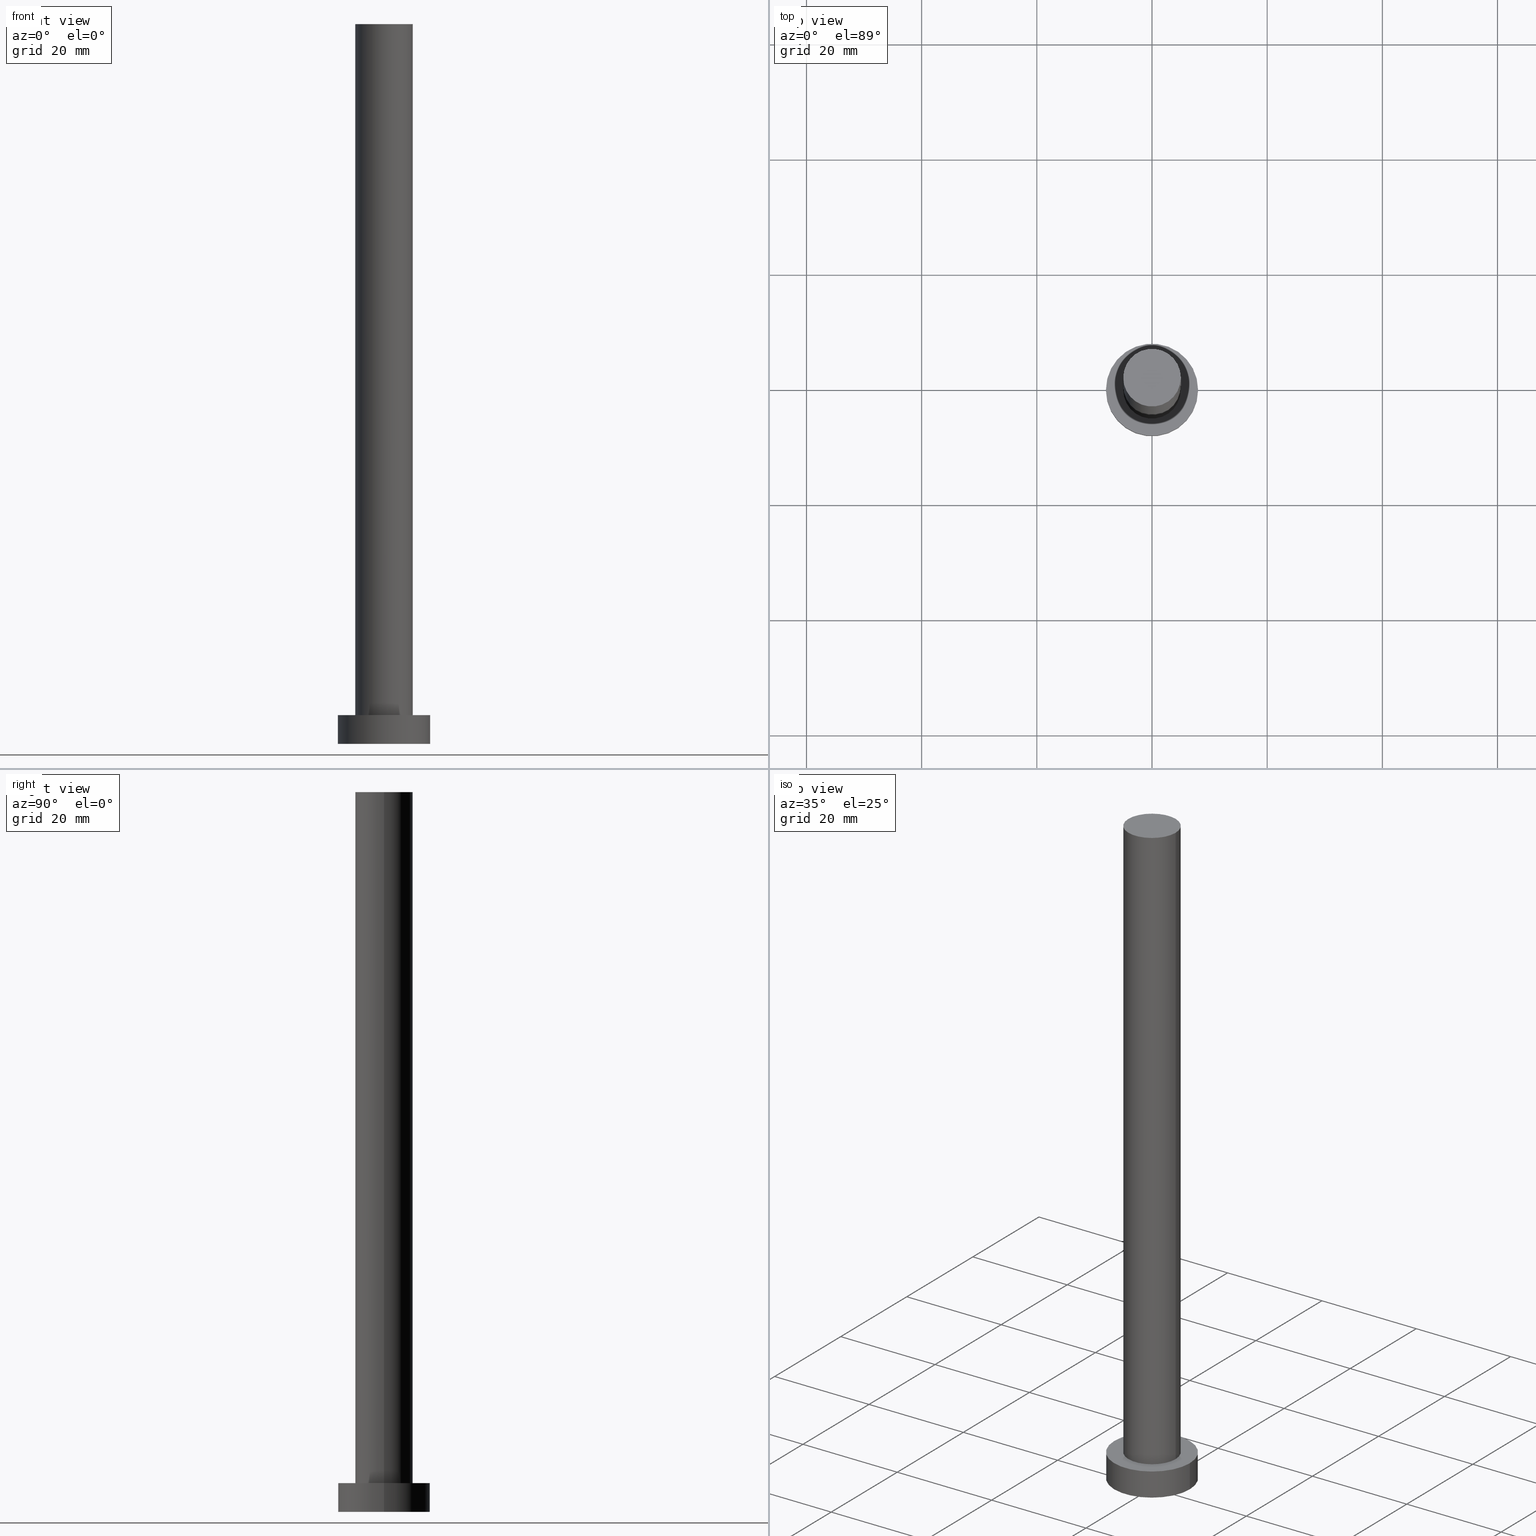
[diagram: canonical four-view strip — front | top / right | iso, engineering-drawing reading convention]
A machine part, canonical four-view strip (front | top / right | iso — engineering-drawing reading convention). The complete STEP part file that produces these views, byte-faithful:
ISO-10303-21;
HEADER;
FILE_DESCRIPTION (( 'STEP AP203' ),
    '1' );
FILE_NAME ('c1f3.STEP',
    '2023-02-13T12:07:16',
    ( '' ),
    ( '' ),
    'SwSTEP 2.0',
    'SolidWorks 2019',
    '' );
FILE_SCHEMA (( 'CONFIG_CONTROL_DESIGN' ));
ENDSEC;

DATA;
#1 = CALENDAR_DATE ( 2023, 13, 2 ) ;
#2 = COORDINATED_UNIVERSAL_TIME_OFFSET ( 1, 0, .AHEAD. ) ;
#3 = APPROVAL ( #72, 'NEUR�EN�' ) ;
#4 = DATE_AND_TIME ( #76, #14 ) ;
#5 = ORIENTED_EDGE ( 'NONE', *, *, #101, .F. ) ;
#6 = DATE_TIME_ROLE ( 'creation_date' ) ;
#7 = ORIENTED_EDGE ( 'NONE', *, *, #109, .F. ) ;
#8 = CC_DESIGN_PERSON_AND_ORGANIZATION_ASSIGNMENT ( #223, #116, ( #156 ) ) ;
#9 = VERTEX_POINT ( 'NONE', #42 ) ;
#10 = ADVANCED_FACE ( 'NONE', ( #251 ), #64, .T. ) ;
#11 = DIRECTION ( 'NONE',  ( -0.000000000000000000, -0.000000000000000000, -1.000000000000000000 ) ) ;
#12 = CARTESIAN_POINT ( 'NONE',  ( -5.000000000000000888, 0.000000000000000000, 125.0000000000000000 ) ) ;
#13 = CLOSED_SHELL ( 'NONE', ( #255, #195, #126, #225, #150, #10, #17 ) ) ;
#14 = LOCAL_TIME ( 13, 7, 16.00000000000000000, #222 ) ;
#15 = DIRECTION ( 'NONE',  ( 1.000000000000000000, 0.000000000000000000, 0.000000000000000000 ) ) ;
#16 = EDGE_LOOP ( 'NONE', ( #5, #30 ) ) ;
#17 = ADVANCED_FACE ( 'NONE', ( #203 ), #102, .T. ) ;
#18 = LINE ( 'NONE', #137, #127 ) ;
#19 = AXIS2_PLACEMENT_3D ( 'NONE', #176, #108, #70 ) ;
#20 = EDGE_CURVE ( 'NONE', #24, #77, #35, .T. ) ;
#21 =( NAMED_UNIT ( * ) PLANE_ANGLE_UNIT ( ) SI_UNIT ( $, .RADIAN. ) );
#22 = DIRECTION ( 'NONE',  ( 1.000000000000000000, 0.000000000000000000, -0.000000000000000000 ) ) ;
#23 = SECURITY_CLASSIFICATION ( '', '', #158 ) ;
#24 = VERTEX_POINT ( 'NONE', #227 ) ;
#25 = ORIENTED_EDGE ( 'NONE', *, *, #97, .T. ) ;
#26 = CARTESIAN_POINT ( 'NONE',  ( 0.000000000000000000, 0.000000000000000000, 5.000000000000000000 ) ) ;
#27 = AXIS2_PLACEMENT_3D ( 'NONE', #33, #207, #131 ) ;
#28 = DIRECTION ( 'NONE',  ( 0.000000000000000000, 0.000000000000000000, 1.000000000000000000 ) ) ;
#29 = DIRECTION ( 'NONE',  ( 1.000000000000000000, 0.000000000000000000, 0.000000000000000000 ) ) ;
#30 = ORIENTED_EDGE ( 'NONE', *, *, #112, .F. ) ;
#31 = CARTESIAN_POINT ( 'NONE',  ( 0.000000000000000000, 0.000000000000000000, 125.0000000000000000 ) ) ;
#32 = CARTESIAN_POINT ( 'NONE',  ( -8.000000000000000000, 0.000000000000000000, 0.000000000000000000 ) ) ;
#33 = CARTESIAN_POINT ( 'NONE',  ( 0.000000000000000000, 0.000000000000000000, 5.000000000000000000 ) ) ;
#34 = CC_DESIGN_PERSON_AND_ORGANIZATION_ASSIGNMENT ( #115, #178, ( #47 ) ) ;
#35 = CIRCLE ( 'NONE', #249, 5.000000000000000888 ) ;
#36 = LINE ( 'NONE', #173, #95 ) ;
#37 = DIRECTION ( 'NONE',  ( 1.000000000000000000, 0.000000000000000000, -0.000000000000000000 ) ) ;
#38 = CC_DESIGN_APPROVAL ( #3, ( #156 ) ) ;
#39 = EDGE_LOOP ( 'NONE', ( #87, #166, #82, #57 ) ) ;
#40 = APPROVAL_PERSON_ORGANIZATION ( #100, #3, #242 ) ;
#41 = VERTEX_POINT ( 'NONE', #61 ) ;
#42 = CARTESIAN_POINT ( 'NONE',  ( -5.000000000000000888, 0.000000000000000000, 125.0000000000000000 ) ) ;
#43 = CC_DESIGN_PERSON_AND_ORGANIZATION_ASSIGNMENT ( #193, #151, ( #213 ) ) ;
#44 = ORIENTED_EDGE ( 'NONE', *, *, #229, .T. ) ;
#45 = DIRECTION ( 'NONE',  ( -1.000000000000000000, 0.000000000000000000, 0.000000000000000000 ) ) ;
#46 = DIRECTION ( 'NONE',  ( -0.000000000000000000, -0.000000000000000000, -1.000000000000000000 ) ) ;
#47 = PRODUCT_DEFINITION ( 'NEZN�M�', '', #156, #218 ) ;
#48 = LINE ( 'NONE', #103, #68 ) ;
#49 = LOCAL_TIME ( 13, 7, 16.00000000000000000, #120 ) ;
#50 = DIRECTION ( 'NONE',  ( -0.000000000000000000, -0.000000000000000000, -1.000000000000000000 ) ) ;
#51 = CARTESIAN_POINT ( 'NONE',  ( 0.000000000000000000, 0.000000000000000000, 125.0000000000000000 ) ) ;
#52 = APPROVAL_STATUS ( 'not_yet_approved' ) ;
#53 = AXIS2_PLACEMENT_3D ( 'NONE', #31, #28, #107 ) ;
#54 = CARTESIAN_POINT ( 'NONE',  ( 8.000000000000000000, 9.797174393178825657E-16, 5.000000000000000000 ) ) ;
#55 = SHAPE_DEFINITION_REPRESENTATION ( #138, #135 ) ;
#56 = PERSON_AND_ORGANIZATION_ROLE ( 'classification_officer' ) ;
#57 = ORIENTED_EDGE ( 'NONE', *, *, #101, .T. ) ;
#58 = CALENDAR_DATE ( 2023, 13, 2 ) ;
#59 = DATE_AND_TIME ( #241, #191 ) ;
#60 = ORIENTED_EDGE ( 'NONE', *, *, #229, .F. ) ;
#61 = CARTESIAN_POINT ( 'NONE',  ( 8.000000000000000000, 9.797174393178825657E-16, 0.000000000000000000 ) ) ;
#62 = AXIS2_PLACEMENT_3D ( 'NONE', #105, #46, #45 ) ;
#63 = DIRECTION ( 'NONE',  ( -0.000000000000000000, -0.000000000000000000, -1.000000000000000000 ) ) ;
#64 = CYLINDRICAL_SURFACE ( 'NONE', #62, 5.000000000000000888 ) ;
#65 = PERSON ( 'NEUR�EN�', 'NEUR�EN�', 'NEUR�EN�', ('NEUR�EN�'), ('NEUR�EN�'), ('NEUR�EN�') ) ;
#66 = CARTESIAN_POINT ( 'NONE',  ( 0.000000000000000000, 0.000000000000000000, 0.000000000000000000 ) ) ;
#67 = PLANE ( 'NONE',  #106 ) ;
#68 = VECTOR ( 'NONE', #202, 1000.000000000000000 ) ;
#69 =( GEOMETRIC_REPRESENTATION_CONTEXT ( 3 ) GLOBAL_UNCERTAINTY_ASSIGNED_CONTEXT ( ( #80 ) ) GLOBAL_UNIT_ASSIGNED_CONTEXT ( ( #110, #21, #71 ) ) REPRESENTATION_CONTEXT ( 'NONE', 'WORKASPACE' ) );
#70 = DIRECTION ( 'NONE',  ( -1.000000000000000000, 0.000000000000000000, 0.000000000000000000 ) ) ;
#71 =( NAMED_UNIT ( * ) SI_UNIT ( $, .STERADIAN. ) SOLID_ANGLE_UNIT ( ) );
#72 = APPROVAL_STATUS ( 'not_yet_approved' ) ;
#73 = APPROVAL_STATUS ( 'not_yet_approved' ) ;
#74 = EDGE_CURVE ( 'NONE', #9, #77, #125, .T. ) ;
#75 = ORIENTED_EDGE ( 'NONE', *, *, #97, .F. ) ;
#76 = CALENDAR_DATE ( 2023, 13, 2 ) ;
#77 = VERTEX_POINT ( 'NONE', #146 ) ;
#78 = PERSON_AND_ORGANIZATION ( #65, #167 ) ;
#79 = EDGE_LOOP ( 'NONE', ( #206, #123, #169, #182 ) ) ;
#80 = UNCERTAINTY_MEASURE_WITH_UNIT (LENGTH_MEASURE( 1.000000000000000082E-05 ), #110, 'distance_accuracy_value', 'NONE');
#81 = APPROVAL_PERSON_ORGANIZATION ( #238, #186, #179 ) ;
#82 = ORIENTED_EDGE ( 'NONE', *, *, #214, .T. ) ;
#83 = ORIENTED_EDGE ( 'NONE', *, *, #145, .T. ) ;
#84 = CIRCLE ( 'NONE', #154, 5.000000000000000888 ) ;
#85 = ORIENTED_EDGE ( 'NONE', *, *, #214, .F. ) ;
#86 = DIRECTION ( 'NONE',  ( 0.000000000000000000, 0.000000000000000000, 1.000000000000000000 ) ) ;
#87 = ORIENTED_EDGE ( 'NONE', *, *, #145, .F. ) ;
#88 = AXIS2_PLACEMENT_3D ( 'NONE', #128, #204, #29 ) ;
#89 = DIRECTION ( 'NONE',  ( -0.000000000000000000, -0.000000000000000000, -1.000000000000000000 ) ) ;
#90 = PLANE ( 'NONE',  #152 ) ;
#91 = MANIFOLD_SOLID_BREP ( 'P�idat vysunut�m3', #13 ) ;
#92 = EDGE_CURVE ( 'NONE', #160, #9, #134, .T. ) ;
#93 = DIRECTION ( 'NONE',  ( 0.000000000000000000, 0.000000000000000000, 1.000000000000000000 ) ) ;
#94 = CIRCLE ( 'NONE', #243, 8.000000000000000000 ) ;
#95 = VECTOR ( 'NONE', #89, 1000.000000000000000 ) ;
#96 = DATE_TIME_ROLE ( 'classification_date' ) ;
#97 = EDGE_CURVE ( 'NONE', #192, #224, #183, .T. ) ;
#98 = PERSON_AND_ORGANIZATION ( #65, #167 ) ;
#99 = EDGE_LOOP ( 'NONE', ( #240, #25 ) ) ;
#100 = PERSON_AND_ORGANIZATION ( #65, #167 ) ;
#101 = EDGE_CURVE ( 'NONE', #205, #41, #199, .T. ) ;
#102 = PLANE ( 'NONE',  #175 ) ;
#103 = CARTESIAN_POINT ( 'NONE',  ( 5.000000000000000888, 6.123233995736767268E-16, 125.0000000000000000 ) ) ;
#104 = CYLINDRICAL_SURFACE ( 'NONE', #163, 8.000000000000000000 ) ;
#105 = CARTESIAN_POINT ( 'NONE',  ( 0.000000000000000000, 0.000000000000000000, 125.0000000000000000 ) ) ;
#106 = AXIS2_PLACEMENT_3D ( 'NONE', #194, #111, #22 ) ;
#107 = DIRECTION ( 'NONE',  ( 1.000000000000000000, 0.000000000000000000, 0.000000000000000000 ) ) ;
#108 = DIRECTION ( 'NONE',  ( -0.000000000000000000, -0.000000000000000000, -1.000000000000000000 ) ) ;
#109 = EDGE_CURVE ( 'NONE', #77, #24, #84, .T. ) ;
#110 =( LENGTH_UNIT ( ) NAMED_UNIT ( * ) SI_UNIT ( .MILLI., .METRE. ) );
#111 = DIRECTION ( 'NONE',  ( 0.000000000000000000, 0.000000000000000000, 1.000000000000000000 ) ) ;
#112 = EDGE_CURVE ( 'NONE', #41, #205, #94, .T. ) ;
#113 = CYLINDRICAL_SURFACE ( 'NONE', #27, 8.000000000000000000 ) ;
#114 = MECHANICAL_CONTEXT ( 'NONE', #187, 'mechanical' ) ;
#115 = PERSON_AND_ORGANIZATION ( #65, #167 ) ;
#116 = PERSON_AND_ORGANIZATION_ROLE ( 'design_supplier' ) ;
#117 = EDGE_LOOP ( 'NONE', ( #7, #130 ) ) ;
#118 = ORIENTED_EDGE ( 'NONE', *, *, #92, .T. ) ;
#119 = AXIS2_PLACEMENT_3D ( 'NONE', #171, #86, #252 ) ;
#120 = COORDINATED_UNIVERSAL_TIME_OFFSET ( 1, 0, .AHEAD. ) ;
#121 = CC_DESIGN_APPROVAL ( #220, ( #47 ) ) ;
#122 = EDGE_CURVE ( 'NONE', #160, #24, #48, .T. ) ;
#123 = ORIENTED_EDGE ( 'NONE', *, *, #122, .T. ) ;
#124 = DIRECTION ( 'NONE',  ( 1.000000000000000000, 0.000000000000000000, 0.000000000000000000 ) ) ;
#125 = LINE ( 'NONE', #12, #162 ) ;
#126 = ADVANCED_FACE ( 'NONE', ( #165 ), #104, .T. ) ;
#127 = VECTOR ( 'NONE', #50, 1000.000000000000000 ) ;
#128 = CARTESIAN_POINT ( 'NONE',  ( 0.000000000000000000, 0.000000000000000000, 5.000000000000000000 ) ) ;
#129 = DIRECTION ( 'NONE',  ( 0.000000000000000000, 0.000000000000000000, 1.000000000000000000 ) ) ;
#130 = ORIENTED_EDGE ( 'NONE', *, *, #20, .F. ) ;
#131 = DIRECTION ( 'NONE',  ( -1.000000000000000000, 0.000000000000000000, 0.000000000000000000 ) ) ;
#132 = FACE_OUTER_BOUND ( 'NONE', #99, .T. ) ;
#133 = FACE_OUTER_BOUND ( 'NONE', #16, .T. ) ;
#134 = CIRCLE ( 'NONE', #53, 5.000000000000000888 ) ;
#135 = ADVANCED_BREP_SHAPE_REPRESENTATION ( 'c1f3', ( #91, #136 ), #69 ) ;
#136 = AXIS2_PLACEMENT_3D ( 'NONE', #235, #215, #254 ) ;
#137 = CARTESIAN_POINT ( 'NONE',  ( 8.000000000000000000, 9.797174393178825657E-16, 5.000000000000000000 ) ) ;
#138 = PRODUCT_DEFINITION_SHAPE ( 'NONE', 'NONE',  #47 ) ;
#139 = APPLICATION_PROTOCOL_DEFINITION ( 'international standard', 'config_control_design', 1994, #187 ) ;
#140 = COORDINATED_UNIVERSAL_TIME_OFFSET ( 1, 0, .AHEAD. ) ;
#141 = PERSON_AND_ORGANIZATION_ROLE ( 'creator' ) ;
#142 = EDGE_CURVE ( 'NONE', #224, #192, #211, .T. ) ;
#143 = EDGE_LOOP ( 'NONE', ( #44, #118 ) ) ;
#144 = EDGE_LOOP ( 'NONE', ( #75, #83, #221, #85 ) ) ;
#145 = EDGE_CURVE ( 'NONE', #192, #41, #18, .T. ) ;
#146 = CARTESIAN_POINT ( 'NONE',  ( -5.000000000000000888, 0.000000000000000000, 5.000000000000000000 ) ) ;
#147 = DIRECTION ( 'NONE',  ( 0.000000000000000000, 0.000000000000000000, 1.000000000000000000 ) ) ;
#148 = DIRECTION ( 'NONE',  ( 1.000000000000000000, 0.000000000000000000, -0.000000000000000000 ) ) ;
#149 = DIRECTION ( 'NONE',  ( 1.000000000000000000, 0.000000000000000000, 0.000000000000000000 ) ) ;
#150 = ADVANCED_FACE ( 'NONE', ( #133 ), #90, .F. ) ;
#151 = PERSON_AND_ORGANIZATION_ROLE ( 'design_owner' ) ;
#152 = AXIS2_PLACEMENT_3D ( 'NONE', #177, #212, #37 ) ;
#153 = CARTESIAN_POINT ( 'NONE',  ( 5.000000000000000888, 6.123233995736767268E-16, 125.0000000000000000 ) ) ;
#154 = AXIS2_PLACEMENT_3D ( 'NONE', #188, #147, #149 ) ;
#155 = DIRECTION ( 'NONE',  ( 1.000000000000000000, 0.000000000000000000, 0.000000000000000000 ) ) ;
#156 = PRODUCT_DEFINITION_FORMATION_WITH_SPECIFIED_SOURCE ( 'LIBOVOLN�', '', #213, .NOT_KNOWN. ) ;
#157 = FACE_OUTER_BOUND ( 'NONE', #79, .T. ) ;
#158 = SECURITY_CLASSIFICATION_LEVEL ( 'unclassified' ) ;
#159 = CALENDAR_DATE ( 2023, 13, 2 ) ;
#160 = VERTEX_POINT ( 'NONE', #153 ) ;
#161 = DATE_AND_TIME ( #58, #232 ) ;
#162 = VECTOR ( 'NONE', #11, 1000.000000000000000 ) ;
#163 = AXIS2_PLACEMENT_3D ( 'NONE', #26, #63, #228 ) ;
#164 = CARTESIAN_POINT ( 'NONE',  ( 0.000000000000000000, 0.000000000000000000, 5.000000000000000000 ) ) ;
#165 = FACE_OUTER_BOUND ( 'NONE', #39, .T. ) ;
#166 = ORIENTED_EDGE ( 'NONE', *, *, #142, .F. ) ;
#167 = ORGANIZATION ( 'NEUR�EN�', 'NEUR�EN�', '' ) ;
#168 = AXIS2_PLACEMENT_3D ( 'NONE', #51, #93, #155 ) ;
#169 = ORIENTED_EDGE ( 'NONE', *, *, #20, .T. ) ;
#170 = CC_DESIGN_DATE_AND_TIME_ASSIGNMENT ( #200, #96, ( #23 ) ) ;
#171 = CARTESIAN_POINT ( 'NONE',  ( 0.000000000000000000, 0.000000000000000000, 5.000000000000000000 ) ) ;
#172 = CYLINDRICAL_SURFACE ( 'NONE', #19, 5.000000000000000888 ) ;
#173 = CARTESIAN_POINT ( 'NONE',  ( -8.000000000000000000, 0.000000000000000000, 5.000000000000000000 ) ) ;
#174 = CARTESIAN_POINT ( 'NONE',  ( -8.000000000000000000, 0.000000000000000000, 5.000000000000000000 ) ) ;
#175 = AXIS2_PLACEMENT_3D ( 'NONE', #190, #129, #148 ) ;
#176 = CARTESIAN_POINT ( 'NONE',  ( 0.000000000000000000, 0.000000000000000000, 125.0000000000000000 ) ) ;
#177 = CARTESIAN_POINT ( 'NONE',  ( 0.000000000000000000, 0.000000000000000000, 0.000000000000000000 ) ) ;
#178 = PERSON_AND_ORGANIZATION_ROLE ( 'creator' ) ;
#179 = APPROVAL_ROLE ( '' ) ;
#180 = ORIENTED_EDGE ( 'NONE', *, *, #109, .T. ) ;
#181 = PRODUCT_RELATED_PRODUCT_CATEGORY ( 'detail', '', ( #213 ) ) ;
#182 = ORIENTED_EDGE ( 'NONE', *, *, #74, .F. ) ;
#183 = CIRCLE ( 'NONE', #119, 8.000000000000000000 ) ;
#184 = CC_DESIGN_APPROVAL ( #186, ( #23 ) ) ;
#185 = EDGE_LOOP ( 'NONE', ( #253, #60, #201, #180 ) ) ;
#186 = APPROVAL ( #73, 'NEUR�EN�' ) ;
#187 = APPLICATION_CONTEXT ( 'configuration controlled 3d designs of mechanical parts and assemblies' ) ;
#188 = CARTESIAN_POINT ( 'NONE',  ( 0.000000000000000000, 0.000000000000000000, 5.000000000000000000 ) ) ;
#189 = DIRECTION ( 'NONE',  ( 0.000000000000000000, 0.000000000000000000, 1.000000000000000000 ) ) ;
#190 = CARTESIAN_POINT ( 'NONE',  ( 0.000000000000000000, 0.000000000000000000, 125.0000000000000000 ) ) ;
#191 = LOCAL_TIME ( 13, 7, 16.00000000000000000, #2 ) ;
#192 = VERTEX_POINT ( 'NONE', #54 ) ;
#193 = PERSON_AND_ORGANIZATION ( #65, #167 ) ;
#194 = CARTESIAN_POINT ( 'NONE',  ( 0.000000000000000000, 0.000000000000000000, 5.000000000000000000 ) ) ;
#195 = ADVANCED_FACE ( 'NONE', ( #237 ), #113, .T. ) ;
#196 = COORDINATED_UNIVERSAL_TIME_OFFSET ( 1, 0, .AHEAD. ) ;
#197 = APPROVAL_DATE_TIME ( #239, #220 ) ;
#198 = APPROVAL_DATE_TIME ( #161, #186 ) ;
#199 = CIRCLE ( 'NONE', #216, 8.000000000000000000 ) ;
#200 = DATE_AND_TIME ( #1, #49 ) ;
#201 = ORIENTED_EDGE ( 'NONE', *, *, #74, .T. ) ;
#202 = DIRECTION ( 'NONE',  ( -0.000000000000000000, -0.000000000000000000, -1.000000000000000000 ) ) ;
#203 = FACE_OUTER_BOUND ( 'NONE', #143, .T. ) ;
#204 = DIRECTION ( 'NONE',  ( 0.000000000000000000, 0.000000000000000000, 1.000000000000000000 ) ) ;
#205 = VERTEX_POINT ( 'NONE', #32 ) ;
#206 = ORIENTED_EDGE ( 'NONE', *, *, #92, .F. ) ;
#207 = DIRECTION ( 'NONE',  ( -0.000000000000000000, -0.000000000000000000, -1.000000000000000000 ) ) ;
#208 = CC_DESIGN_DATE_AND_TIME_ASSIGNMENT ( #4, #6, ( #47 ) ) ;
#209 = APPLICATION_CONTEXT ( 'configuration controlled 3d designs of mechanical parts and assemblies' ) ;
#210 = APPROVAL_ROLE ( '' ) ;
#211 = CIRCLE ( 'NONE', #88, 8.000000000000000000 ) ;
#212 = DIRECTION ( 'NONE',  ( 0.000000000000000000, 0.000000000000000000, 1.000000000000000000 ) ) ;
#213 = PRODUCT ( 'c1f3', 'c1f3', '', ( #114 ) ) ;
#214 = EDGE_CURVE ( 'NONE', #224, #205, #36, .T. ) ;
#215 = DIRECTION ( 'NONE',  ( 0.000000000000000000, 0.000000000000000000, 1.000000000000000000 ) ) ;
#216 = AXIS2_PLACEMENT_3D ( 'NONE', #66, #246, #248 ) ;
#217 = APPROVAL_DATE_TIME ( #59, #3 ) ;
#218 = DESIGN_CONTEXT ( 'detailed design', #209, 'design' ) ;
#219 = CC_DESIGN_SECURITY_CLASSIFICATION ( #23, ( #156 ) ) ;
#220 = APPROVAL ( #52, 'NEUR�EN�' ) ;
#221 = ORIENTED_EDGE ( 'NONE', *, *, #112, .T. ) ;
#222 = COORDINATED_UNIVERSAL_TIME_OFFSET ( 1, 0, .AHEAD. ) ;
#223 = PERSON_AND_ORGANIZATION ( #65, #167 ) ;
#224 = VERTEX_POINT ( 'NONE', #174 ) ;
#225 = ADVANCED_FACE ( 'NONE', ( #233, #132 ), #67, .T. ) ;
#226 = CARTESIAN_POINT ( 'NONE',  ( 0.000000000000000000, 0.000000000000000000, 0.000000000000000000 ) ) ;
#227 = CARTESIAN_POINT ( 'NONE',  ( 5.000000000000000888, 6.123233995736767268E-16, 5.000000000000000000 ) ) ;
#228 = DIRECTION ( 'NONE',  ( -1.000000000000000000, 0.000000000000000000, 0.000000000000000000 ) ) ;
#229 = EDGE_CURVE ( 'NONE', #9, #160, #245, .T. ) ;
#230 = DIRECTION ( 'NONE',  ( 0.000000000000000000, 0.000000000000000000, 1.000000000000000000 ) ) ;
#231 = PERSON_AND_ORGANIZATION ( #65, #167 ) ;
#232 = LOCAL_TIME ( 13, 7, 16.00000000000000000, #140 ) ;
#233 = FACE_BOUND ( 'NONE', #117, .T. ) ;
#234 = APPLICATION_PROTOCOL_DEFINITION ( 'international standard', 'config_control_design', 1994, #209 ) ;
#235 = CARTESIAN_POINT ( 'NONE',  ( 0.000000000000000000, 0.000000000000000000, 0.000000000000000000 ) ) ;
#236 = APPROVAL_PERSON_ORGANIZATION ( #231, #220, #210 ) ;
#237 = FACE_OUTER_BOUND ( 'NONE', #144, .T. ) ;
#238 = PERSON_AND_ORGANIZATION ( #65, #167 ) ;
#239 = DATE_AND_TIME ( #159, #250 ) ;
#240 = ORIENTED_EDGE ( 'NONE', *, *, #142, .T. ) ;
#241 = CALENDAR_DATE ( 2023, 13, 2 ) ;
#242 = APPROVAL_ROLE ( '' ) ;
#243 = AXIS2_PLACEMENT_3D ( 'NONE', #226, #230, #124 ) ;
#244 = CC_DESIGN_PERSON_AND_ORGANIZATION_ASSIGNMENT ( #78, #141, ( #156 ) ) ;
#245 = CIRCLE ( 'NONE', #168, 5.000000000000000888 ) ;
#246 = DIRECTION ( 'NONE',  ( 0.000000000000000000, 0.000000000000000000, 1.000000000000000000 ) ) ;
#247 = CC_DESIGN_PERSON_AND_ORGANIZATION_ASSIGNMENT ( #98, #56, ( #23 ) ) ;
#248 = DIRECTION ( 'NONE',  ( 1.000000000000000000, 0.000000000000000000, 0.000000000000000000 ) ) ;
#249 = AXIS2_PLACEMENT_3D ( 'NONE', #164, #189, #15 ) ;
#250 = LOCAL_TIME ( 13, 7, 16.00000000000000000, #196 ) ;
#251 = FACE_OUTER_BOUND ( 'NONE', #185, .T. ) ;
#252 = DIRECTION ( 'NONE',  ( 1.000000000000000000, 0.000000000000000000, 0.000000000000000000 ) ) ;
#253 = ORIENTED_EDGE ( 'NONE', *, *, #122, .F. ) ;
#254 = DIRECTION ( 'NONE',  ( 1.000000000000000000, 0.000000000000000000, 0.000000000000000000 ) ) ;
#255 = ADVANCED_FACE ( 'NONE', ( #157 ), #172, .T. ) ;
ENDSEC;
END-ISO-10303-21;
